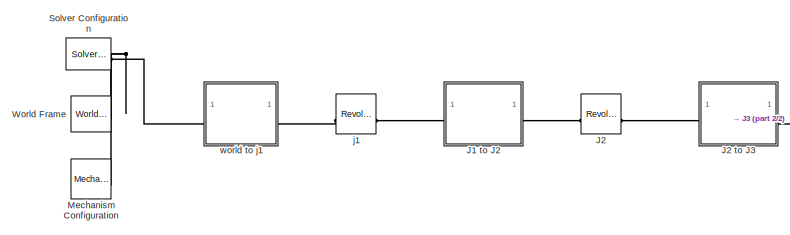
[diagram: root canvas - part 1/2, left side, full height]
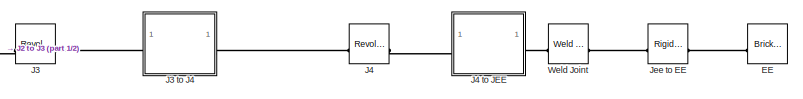
[diagram: root canvas - part 2/2, middle right region]
MODEL slx_18ff5d10bcf0
KIND model
CONFIG AbsTol = auto
CONFIG EnableMultiTasking = off
CONFIG FixedStep = auto
CONFIG MaxStep = auto
CONFIG MinStep = auto
CONFIG RelTol = 1e-3
CONFIG SampleTimeConstraint = Unconstrained
CONFIG SolverName = VariableStepAuto
CONFIG StartTime = 0.0
CONFIG StopTime = 10.0
BLOCK [Reference] EE  REF=sm_lib/Body Elements/Brick Solid
  NameLocation = top
  SourceBlock = sm_lib/Body Elements/Brick Solid
  SourceType = Brick Solid
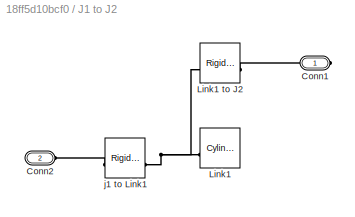
BLOCK [SubSystem] J1 to J2
BLOCK [PMIOPort] J1 to J2/Conn1
  Side = Right
BLOCK [PMIOPort] J1 to J2/Conn2
  Port = 2
  Side = Left
BLOCK [Reference] J1 to J2/Link1  REF=sm_lib/Body Elements/Cylindrical Solid
  SourceBlock = sm_lib/Body Elements/Cylindrical Solid
  SourceType = Cylindrical Solid
BLOCK [Reference] J1 to J2/Link1 to J2  REF=sm_lib/Frames and
Transforms/Rigid
Transform
  SourceBlock = sm_lib/Frames and\nTransforms/Rigid\nTransform
  SourceType = Rigid\nTransform
BLOCK [Reference] J1 to J2/j1 to Link1  REF=sm_lib/Frames and
Transforms/Rigid
Transform
  SourceBlock = sm_lib/Frames and\nTransforms/Rigid\nTransform
  SourceType = Rigid\nTransform
BLOCK [Reference] J2  REF=sm_lib/Joints/Revolute Joint
  SourceBlock = sm_lib/Joints/Revolute Joint
  SourceType = Revolute Joint
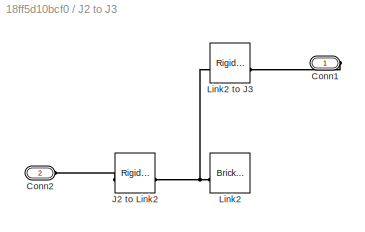
BLOCK [SubSystem] J2 to J3
BLOCK [PMIOPort] J2 to J3/Conn1
  Side = Right
BLOCK [PMIOPort] J2 to J3/Conn2
  Port = 2
  Side = Left
BLOCK [Reference] J2 to J3/J2 to Link2  REF=sm_lib/Frames and
Transforms/Rigid
Transform
  SourceBlock = sm_lib/Frames and\nTransforms/Rigid\nTransform
  SourceType = Rigid\nTransform
BLOCK [Reference] J2 to J3/Link2  REF=sm_lib/Body Elements/Brick Solid
  NameLocation = top
  SourceBlock = sm_lib/Body Elements/Brick Solid
  SourceType = Brick Solid
BLOCK [Reference] J2 to J3/Link2 to J3  REF=sm_lib/Frames and
Transforms/Rigid
Transform
  SourceBlock = sm_lib/Frames and\nTransforms/Rigid\nTransform
  SourceType = Rigid\nTransform
BLOCK [Reference] J3  REF=sm_lib/Joints/Revolute Joint
  SourceBlock = sm_lib/Joints/Revolute Joint
  SourceType = Revolute Joint
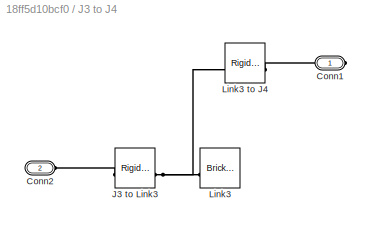
BLOCK [SubSystem] J3 to J4
BLOCK [PMIOPort] J3 to J4/Conn1
  Side = Right
BLOCK [PMIOPort] J3 to J4/Conn2
  Port = 2
  Side = Left
BLOCK [Reference] J3 to J4/J3 to Link3  REF=sm_lib/Frames and
Transforms/Rigid
Transform
  SourceBlock = sm_lib/Frames and\nTransforms/Rigid\nTransform
  SourceType = Rigid\nTransform
BLOCK [Reference] J3 to J4/Link3  REF=sm_lib/Body Elements/Brick Solid
  NameLocation = top
  SourceBlock = sm_lib/Body Elements/Brick Solid
  SourceType = Brick Solid
BLOCK [Reference] J3 to J4/Link3 to J4  REF=sm_lib/Frames and
Transforms/Rigid
Transform
  SourceBlock = sm_lib/Frames and\nTransforms/Rigid\nTransform
  SourceType = Rigid\nTransform
BLOCK [Reference] J4  REF=sm_lib/Joints/Revolute Joint
  SourceBlock = sm_lib/Joints/Revolute Joint
  SourceType = Revolute Joint
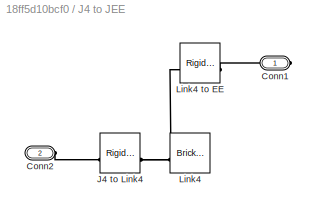
BLOCK [SubSystem] J4 to JEE
BLOCK [PMIOPort] J4 to JEE/Conn1
  Side = Right
BLOCK [PMIOPort] J4 to JEE/Conn2
  Port = 2
  Side = Left
BLOCK [Reference] J4 to JEE/J4 to Link4  REF=sm_lib/Frames and
Transforms/Rigid
Transform
  SourceBlock = sm_lib/Frames and\nTransforms/Rigid\nTransform
  SourceType = Rigid\nTransform
BLOCK [Reference] J4 to JEE/Link4  REF=sm_lib/Body Elements/Brick Solid
  NameLocation = top
  SourceBlock = sm_lib/Body Elements/Brick Solid
  SourceType = Brick Solid
BLOCK [Reference] J4 to JEE/Link4 to EE  REF=sm_lib/Frames and
Transforms/Rigid
Transform
  SourceBlock = sm_lib/Frames and\nTransforms/Rigid\nTransform
  SourceType = Rigid\nTransform
BLOCK [Reference] Jee to EE  REF=sm_lib/Frames and
Transforms/Rigid
Transform
  SourceBlock = sm_lib/Frames and\nTransforms/Rigid\nTransform
  SourceType = Rigid\nTransform
BLOCK [Reference] Mechanism Configuration  REF=sm_lib/Utilities/Mechanism
Configuration
  SourceBlock = sm_lib/Utilities/Mechanism\nConfiguration
  SourceType = Mechanism\nConfiguration
BLOCK [Reference] Solver Configuration  REF=nesl_utility/Solver
Configuration
  SourceBlock = nesl_utility/Solver\nConfiguration
  SourceType = Solver\nConfiguration
BLOCK [Reference] Weld Joint  REF=sm_lib/Joints/Weld Joint
  SourceBlock = sm_lib/Joints/Weld Joint
  SourceType = Weld Joint
BLOCK [Reference] World Frame  REF=sm_lib/Frames and
Transforms/World Frame
  SourceBlock = sm_lib/Frames and\nTransforms/World Frame
  SourceType = World Frame
BLOCK [Reference] j1  REF=sm_lib/Joints/Revolute Joint
  SourceBlock = sm_lib/Joints/Revolute Joint
  SourceType = Revolute Joint
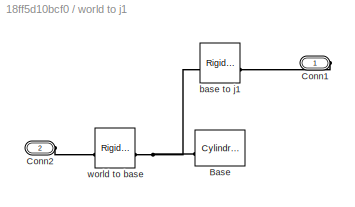
BLOCK [SubSystem] world to j1
BLOCK [Reference] world to j1/Base  REF=sm_lib/Body Elements/Cylindrical Solid
  SourceBlock = sm_lib/Body Elements/Cylindrical Solid
  SourceType = Cylindrical Solid
BLOCK [PMIOPort] world to j1/Conn1
  Side = Right
BLOCK [PMIOPort] world to j1/Conn2
  Port = 2
  Side = Left
BLOCK [Reference] world to j1/base to j1  REF=sm_lib/Frames and
Transforms/Rigid
Transform
  SourceBlock = sm_lib/Frames and\nTransforms/Rigid\nTransform
  SourceType = Rigid\nTransform
BLOCK [Reference] world to j1/world to base  REF=sm_lib/Frames and
Transforms/Rigid
Transform
  SourceBlock = sm_lib/Frames and\nTransforms/Rigid\nTransform
  SourceType = Rigid\nTransform
PLINE EE:RConn1 -- Jee to EE:RConn1
PLINE J1 to J2/Conn1:RConn1 -- J1 to J2/Link1 to J2:RConn1
PLINE J1 to J2/Conn2:RConn1 -- J1 to J2/j1 to Link1:LConn1
PNET net1: J1 to J2/Link1 to J2:LConn1 -- J1 to J2/Link1:RConn1 -- J1 to J2/j1 to Link1:RConn1
PLINE J1 to J2:LConn1 -- j1:RConn1
PLINE J1 to J2:RConn1 -- J2:LConn1
PLINE J2 to J3/Conn1:RConn1 -- J2 to J3/Link2 to J3:RConn1
PLINE J2 to J3/Conn2:RConn1 -- J2 to J3/J2 to Link2:LConn1
PNET net2: J2 to J3/J2 to Link2:RConn1 -- J2 to J3/Link2 to J3:LConn1 -- J2 to J3/Link2:RConn1
PLINE J2 to J3:LConn1 -- J2:RConn1
PLINE J2 to J3:RConn1 -- J3:LConn1
PLINE J3 to J4/Conn1:RConn1 -- J3 to J4/Link3 to J4:RConn1
PLINE J3 to J4/Conn2:RConn1 -- J3 to J4/J3 to Link3:LConn1
PNET net3: J3 to J4/J3 to Link3:RConn1 -- J3 to J4/Link3 to J4:LConn1 -- J3 to J4/Link3:RConn1
PLINE J3 to J4:LConn1 -- J3:RConn1
PLINE J3 to J4:RConn1 -- J4:LConn1
PLINE J4 to JEE/Conn1:RConn1 -- J4 to JEE/Link4 to EE:RConn1
PLINE J4 to JEE/Conn2:RConn1 -- J4 to JEE/J4 to Link4:LConn1
PNET net4: J4 to JEE/J4 to Link4:RConn1 -- J4 to JEE/Link4 to EE:LConn1 -- J4 to JEE/Link4:RConn1
PLINE J4 to JEE:LConn1 -- J4:RConn1
PLINE J4 to JEE:RConn1 -- Weld Joint:LConn1
PLINE Jee to EE:LConn1 -- Weld Joint:RConn1
PNET net5: Mechanism Configuration:RConn1 -- Solver Configuration:RConn1 -- World Frame:RConn1 -- world to j1:LConn1
PLINE j1:LConn1 -- world to j1:RConn1
PNET net6: world to j1/Base:RConn1 -- world to j1/base to j1:LConn1 -- world to j1/world to base:RConn1
PLINE world to j1/Conn1:RConn1 -- world to j1/base to j1:RConn1
PLINE world to j1/Conn2:RConn1 -- world to j1/world to base:LConn1
note: PNET lines group multi-terminal physical nets as a canonical sorted terminal list (undirected conserving connections); 2-terminal nets keep the pairwise PLINE form
